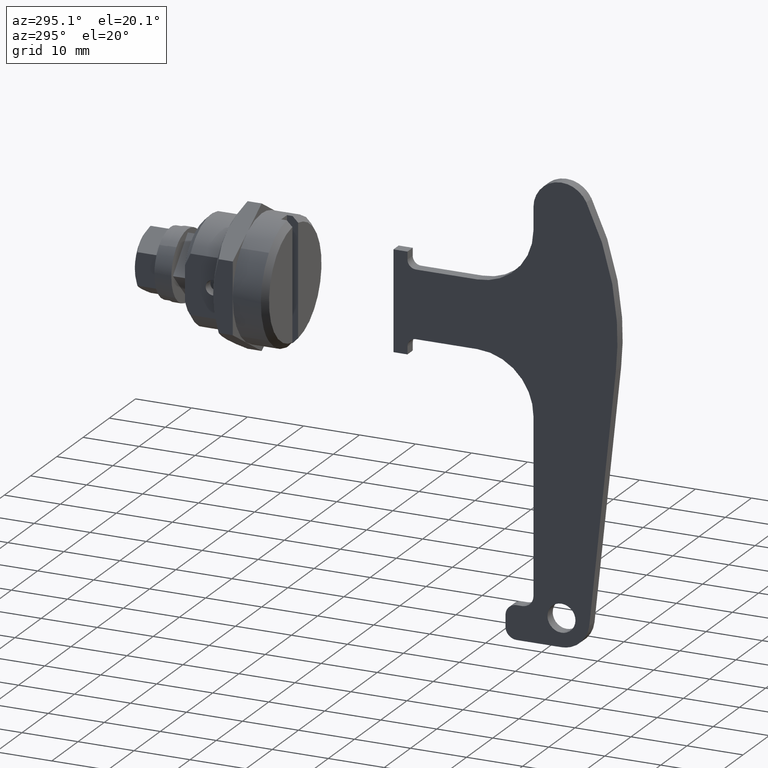
[diagram: clean part render]
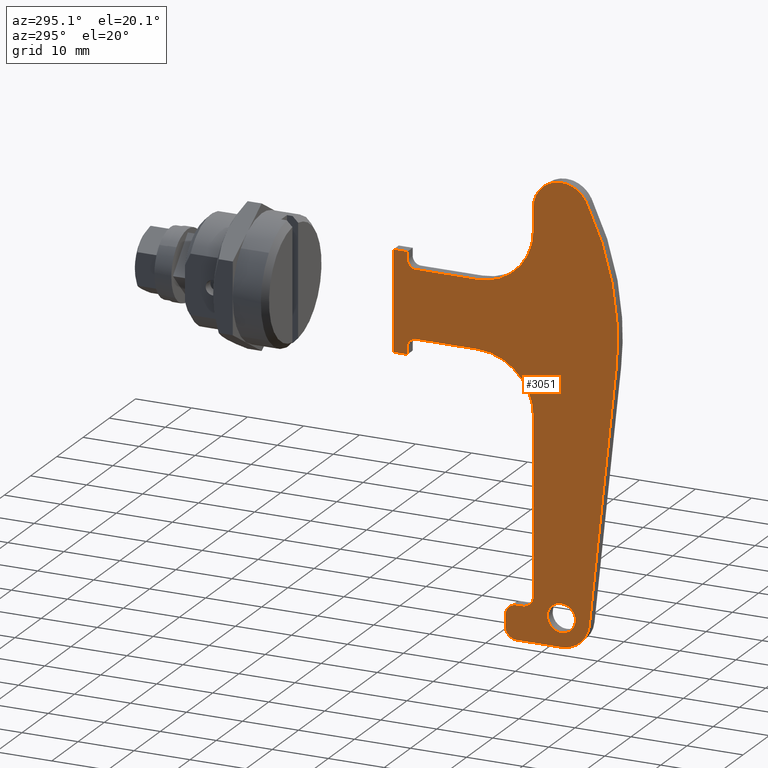
[diagram: same view with one face highlighted and labeled with its STEP entity id]
A machine part, auxiliary view. The second image highlights one B-rep face of the part: STEP entity #3051.
In plain terms, the highlighted face is a freeform B-spline surface patch.
Its self-contained STEP definition (entity closure, byte-faithful):
#2639=CARTESIAN_POINT('',(-1.0,-170.536136000000000,-47.499799999999993));
#2640=VERTEX_POINT('',#2639);
#2641=CARTESIAN_POINT('',(-1.000000000001990,-172.192686456660710,-48.127410952381972));
#2642=VERTEX_POINT('',#2641);
#2643=CARTESIAN_POINT('',(-1.0,-170.536136000000000,-47.499799999999993));
#2644=CARTESIAN_POINT('',(-1.000000000000318,-170.800226762563110,-47.499658286533460));
#2645=CARTESIAN_POINT('',(-1.000000000001042,-171.403731062217790,-47.596369053815707));
#2646=CARTESIAN_POINT('',(-1.000000000001685,-171.938640270440910,-47.902051036289393));
#2647=CARTESIAN_POINT('',(-1.000000000001990,-172.192686456660710,-48.127410952381972));
#2648=B_SPLINE_CURVE_WITH_KNOTS('',3,(#2643,#2644,#2645,#2646,#2647),.UNSPECIFIED.,.F.,.U.,(4,1,4),(0.000000093413510,0.792253203921531,1.810818178088610),.UNSPECIFIED.);
#2649=EDGE_CURVE('',#2640,#2642,#2648,.T.);
#2651=CARTESIAN_POINT('',(-1.0,-168.036136000000000,-49.999800129850001));
#2652=VERTEX_POINT('',#2651);
#2653=CARTESIAN_POINT('',(-1.0,-168.036136000000000,-49.999800129850001));
#2654=CARTESIAN_POINT('',(-1.0,-168.035992696794890,-49.733893875186787));
#2655=CARTESIAN_POINT('',(-1.000000000000001,-168.105333804147590,-49.304477470429049));
#2656=CARTESIAN_POINT('',(-0.999999999999999,-168.380156711428900,-48.684452767351281));
#2657=CARTESIAN_POINT('',(-1.000000000000001,-168.787135531025090,-48.162824488278808));
#2658=CARTESIAN_POINT('',(-0.999999999999997,-169.514010359687800,-47.650750198929913));
#2659=CARTESIAN_POINT('',(-1.000000000000004,-170.147384490604590,-47.499121212078357));
#2660=CARTESIAN_POINT('',(-1.0,-170.536136000000000,-47.499799999999993));
#2661=B_SPLINE_CURVE_WITH_KNOTS('',3,(#2653,#2654,#2655,#2656,#2657,#2658,#2659,#2660),.UNSPECIFIED.,.F.,.U.,(4,1,1,1,1,4),(0.000000543719573,0.797682162745053,1.288587646904784,2.024825535698195,2.761226608019133,3.927089434103053),.UNSPECIFIED.);
#2662=EDGE_CURVE('',#2652,#2640,#2661,.T.);
#2664=CARTESIAN_POINT('',(-1.0,-170.536136000000000,-52.499800000000000));
#2665=VERTEX_POINT('',#2664);
#2666=CARTESIAN_POINT('',(-1.0,-170.536136000000000,-52.499800000000000));
#2667=CARTESIAN_POINT('',(-1.000000000000002,-170.188356166709410,-52.500260487814721));
#2668=CARTESIAN_POINT('',(-0.999999999999997,-169.595604012052010,-52.373945107237837));
#2669=CARTESIAN_POINT('',(-0.999999999999998,-168.844410458549190,-51.898314483583050));
#2670=CARTESIAN_POINT('',(-1.000000000000009,-168.396737789170000,-51.352813859373377));
#2671=CARTESIAN_POINT('',(-0.999999999999991,-168.105347834750400,-50.695110744591879));
#2672=CARTESIAN_POINT('',(-1.000000000000005,-168.035994032083690,-50.265705896427242));
#2673=CARTESIAN_POINT('',(-1.0,-168.036136000000000,-49.999800129850001));
#2674=B_SPLINE_CURVE_WITH_KNOTS('',3,(#2666,#2667,#2668,#2669,#2670,#2671,#2672,#2673),.UNSPECIFIED.,.F.,.U.,(4,1,1,1,1,4),(0.000000543888734,1.043138602829692,1.779488417533532,2.638502232633047,3.129407698402412,3.927089287728215),.UNSPECIFIED.);
#2675=EDGE_CURVE('',#2665,#2652,#2674,.T.);
#2677=CARTESIAN_POINT('',(-0.999999999997504,-172.408524998983610,-51.656350414379901));
#2678=VERTEX_POINT('',#2677);
#2679=CARTESIAN_POINT('',(-0.999999999997504,-172.408524998983610,-51.656350414379901));
#2680=CARTESIAN_POINT('',(-0.999999999997757,-172.218763774112010,-51.871134253127657));
#2681=CARTESIAN_POINT('',(-0.999999999998249,-171.851681568308210,-52.164244545686230));
#2682=CARTESIAN_POINT('',(-0.999999999999115,-171.197403661433300,-52.438360860228940));
#2683=CARTESIAN_POINT('',(-0.999999999999681,-170.778633855696400,-52.499901522019933));
#2684=CARTESIAN_POINT('',(-1.0,-170.536136000000000,-52.499800000000000));
#2685=B_SPLINE_CURVE_WITH_KNOTS('',3,(#2679,#2680,#2681,#2682,#2683,#2684),.UNSPECIFIED.,.F.,.U.,(4,1,1,4),(0.000000159299617,0.859743416419884,1.388786227848954,2.116272966683433),.UNSPECIFIED.);
#2686=EDGE_CURVE('',#2678,#2665,#2685,.T.);
#2764=CARTESIAN_POINT('',(-1.0,-173.036136000000000,-49.999799870149992));
#2765=VERTEX_POINT('',#2764);
#2766=CARTESIAN_POINT('',(-1.000000000001990,-172.192686456660710,-48.127410952381972));
#2767=CARTESIAN_POINT('',(-1.000000000001791,-172.407487439261590,-48.317158619353989));
#2768=CARTESIAN_POINT('',(-1.000000000001395,-172.700567220170910,-48.684263756032983));
#2769=CARTESIAN_POINT('',(-1.000000000000707,-172.974694550910410,-49.338534477410960));
#2770=CARTESIAN_POINT('',(-1.000000000000253,-173.036240669849490,-49.757299890618562));
#2771=CARTESIAN_POINT('',(-1.0,-173.036136000000000,-49.999799870149992));
#2772=B_SPLINE_CURVE_WITH_KNOTS('',3,(#2766,#2767,#2768,#2769,#2770,#2771),.UNSPECIFIED.,.F.,.U.,(4,1,1,4),(0.000000159294619,0.859743374974491,1.388786160905466,2.116272864656853),.UNSPECIFIED.);
#2773=EDGE_CURVE('',#2642,#2765,#2772,.T.);
#2796=CARTESIAN_POINT('',(-1.0,-173.036136000000000,-49.999799870149992));
#2797=CARTESIAN_POINT('',(-0.999999999999490,-173.036528522227710,-50.339379605216422));
#2798=CARTESIAN_POINT('',(-0.999999999998579,-172.911162995078310,-50.942605600580642));
#2799=CARTESIAN_POINT('',(-0.999999999997803,-172.583592864065910,-51.458635202120703));
#2800=CARTESIAN_POINT('',(-0.999999999997504,-172.408524998983610,-51.656350414379901));
#2801=B_SPLINE_CURVE_WITH_KNOTS('',3,(#2796,#2797,#2798,#2799,#2800),.UNSPECIFIED.,.F.,.U.,(4,1,4),(0.000000093413915,1.018565127809672,1.810818285168500),.UNSPECIFIED.);
#2802=EDGE_CURVE('',#2765,#2678,#2801,.T.);
#2807=CARTESIAN_POINT('',(-1.0,-182.531969976906310,28.994175920847951));
#2808=CARTESIAN_POINT('',(-1.0,-138.538235049813610,28.994175920847951));
#2809=CARTESIAN_POINT('',(-1.0,-182.531969976906310,-58.995705705116187));
#2810=CARTESIAN_POINT('',(-1.0,-138.538235049813610,-58.995705705116187));
#2811=B_SPLINE_SURFACE_WITH_KNOTS('',1,1,((#2807,#2809),(#2808,#2810)),.UNSPECIFIED.,.F.,.F.,.U.,(2,2),(2,2),(0.0,43.993734927092653),(0.0,87.989881625964145),.UNSPECIFIED.);
#2812=CARTESIAN_POINT('',(-1.0,-143.036136000000000,7.500000000000000));
#2813=VERTEX_POINT('',#2812);
#2814=CARTESIAN_POINT('',(-1.0,-143.036136000000000,8.850000000000000));
#2815=VERTEX_POINT('',#2814);
#2816=CARTESIAN_POINT('',(-1.0,-143.036136000000000,7.500000000000000));
#2817=CARTESIAN_POINT('',(-1.0,-143.036136000000000,8.850000000000000));
#2818=QUASI_UNIFORM_CURVE('',1,(#2816,#2817),.UNSPECIFIED.,.F.,.U.);
#2819=EDGE_CURVE('',#2813,#2815,#2818,.T.);
#2820=ORIENTED_EDGE('',*,*,#2819,.T.);
#2821=CARTESIAN_POINT('',(-1.0,-140.536136000000000,8.850000000000000));
#2822=VERTEX_POINT('',#2821);
#2823=CARTESIAN_POINT('',(-1.0,-143.036136000000000,8.850000000000000));
#2824=CARTESIAN_POINT('',(-1.0,-140.536136000000000,8.850000000000000));
#2825=QUASI_UNIFORM_CURVE('',1,(#2823,#2824),.UNSPECIFIED.,.F.,.U.);
#2826=EDGE_CURVE('',#2815,#2822,#2825,.T.);
#2827=ORIENTED_EDGE('',*,*,#2826,.T.);
#2828=CARTESIAN_POINT('',(-1.0,-140.536136000000000,-8.850000000000000));
#2829=VERTEX_POINT('',#2828);
#2830=CARTESIAN_POINT('',(-1.0,-140.536136000000000,8.850000000000000));
#2831=CARTESIAN_POINT('',(-1.0,-140.536136000000000,-8.850000000000000));
#2832=QUASI_UNIFORM_CURVE('',1,(#2830,#2831),.UNSPECIFIED.,.F.,.U.);
#2833=EDGE_CURVE('',#2822,#2829,#2832,.T.);
#2834=ORIENTED_EDGE('',*,*,#2833,.T.);
#2835=CARTESIAN_POINT('',(-1.0,-143.036136000000000,-8.850000000000000));
#2836=VERTEX_POINT('',#2835);
#2837=CARTESIAN_POINT('',(-1.0,-140.536136000000000,-8.850000000000000));
#2838=CARTESIAN_POINT('',(-1.0,-143.036136000000000,-8.850000000000000));
#2839=QUASI_UNIFORM_CURVE('',1,(#2837,#2838),.UNSPECIFIED.,.F.,.U.);
#2840=EDGE_CURVE('',#2829,#2836,#2839,.T.);
#2841=ORIENTED_EDGE('',*,*,#2840,.T.);
#2842=CARTESIAN_POINT('',(-1.0,-143.036136000000000,-7.500000000000000));
#2843=VERTEX_POINT('',#2842);
#2844=CARTESIAN_POINT('',(-1.0,-143.036136000000000,-8.850000000000000));
#2845=CARTESIAN_POINT('',(-1.0,-143.036136000000000,-7.500000000000000));
#2846=QUASI_UNIFORM_CURVE('',1,(#2844,#2845),.UNSPECIFIED.,.F.,.U.);
#2847=EDGE_CURVE('',#2836,#2843,#2846,.T.);
#2848=ORIENTED_EDGE('',*,*,#2847,.T.);
#2849=CARTESIAN_POINT('',(-1.0,-144.536136000000000,-6.0));
#2850=VERTEX_POINT('',#2849);
#2851=CARTESIAN_POINT('',(-1.0,-143.036136000000000,-7.500000000000000));
#2852=CARTESIAN_POINT('',(-0.999999999999999,-143.035793775269410,-7.279035425719099));
#2853=CARTESIAN_POINT('',(-1.000000000000002,-143.130030361828400,-6.862158556068359));
#2854=CARTESIAN_POINT('',(-0.999999999999997,-143.502487818818390,-6.359506614172871));
#2855=CARTESIAN_POINT('',(-1.000000000000004,-143.996203109713600,-6.063885360538771));
#2856=CARTESIAN_POINT('',(-0.999999999999998,-144.364324854387090,-5.999902443624710));
#2857=CARTESIAN_POINT('',(-1.0,-144.536136000000000,-6.0));
#2858=B_SPLINE_CURVE_WITH_KNOTS('',3,(#2851,#2852,#2853,#2854,#2855,#2856,#2857),.UNSPECIFIED.,.F.,.U.,(4,1,1,1,4),(0.000000348528810,0.662746990289565,1.251847667184678,1.840962228493762,2.356430824938675),.UNSPECIFIED.);
#2859=EDGE_CURVE('',#2843,#2850,#2858,.T.);
#2860=ORIENTED_EDGE('',*,*,#2859,.T.);
#2861=CARTESIAN_POINT('',(-1.0,-155.536136000000000,-6.0));
#2862=VERTEX_POINT('',#2861);
#2863=CARTESIAN_POINT('',(-1.0,-144.536136000000000,-6.0));
#2864=CARTESIAN_POINT('',(-1.0,-155.536136000000000,-6.0));
#2865=QUASI_UNIFORM_CURVE('',1,(#2863,#2864),.UNSPECIFIED.,.F.,.U.);
#2866=EDGE_CURVE('',#2850,#2862,#2865,.T.);
#2867=ORIENTED_EDGE('',*,*,#2866,.T.);
#2868=CARTESIAN_POINT('',(-1.0,-165.536136000000000,-16.0));
#2869=VERTEX_POINT('',#2868);
#2870=CARTESIAN_POINT('',(-1.0,-155.536136000000000,-6.0));
#2871=CARTESIAN_POINT('',(-0.999999999999999,-156.313352613838500,-5.999877524168937));
#2872=CARTESIAN_POINT('',(-0.999999999999999,-157.949580587987610,-6.191577421280197));
#2873=CARTESIAN_POINT('',(-1.000000000000007,-160.225415989497410,-7.053419415564927));
#2874=CARTESIAN_POINT('',(-0.999999999999993,-162.288323329022690,-8.487367863672265));
#2875=CARTESIAN_POINT('',(-0.999999999999996,-163.889115376740900,-10.320354401015379));
#2876=CARTESIAN_POINT('',(-1.000000000000013,-164.844872655742990,-12.190716686984400));
#2877=CARTESIAN_POINT('',(-0.999999999999976,-165.404463952215390,-14.077488982024590));
#2878=CARTESIAN_POINT('',(-1.000000000000053,-165.536286622605100,-15.263686519067839));
#2879=CARTESIAN_POINT('',(-1.0,-165.536136000000000,-16.0));
#2880=B_SPLINE_CURVE_WITH_KNOTS('',3,(#2870,#2871,#2872,#2873,#2874,#2875,#2876,#2877,#2878,#2879),.UNSPECIFIED.,.F.,.U.,(4,1,1,1,1,1,1,4),(0.000000270659248,2.331654123681362,4.908776769868471,7.240483282914747,9.817521841804044,12.149208311741949,13.499153531187099,15.708061828769370),.UNSPECIFIED.);
#2881=EDGE_CURVE('',#2862,#2869,#2880,.T.);
#2882=ORIENTED_EDGE('',*,*,#2881,.T.);
#2883=CARTESIAN_POINT('',(-1.0,-165.536136000000000,-46.999800000000000));
#2884=VERTEX_POINT('',#2883);
#2885=CARTESIAN_POINT('',(-1.0,-165.536136000000000,-16.0));
#2886=CARTESIAN_POINT('',(-1.0,-165.536136000000000,-46.999800000000000));
#2887=QUASI_UNIFORM_CURVE('',1,(#2885,#2886),.UNSPECIFIED.,.F.,.U.);
#2888=EDGE_CURVE('',#2869,#2884,#2887,.T.);
#2889=ORIENTED_EDGE('',*,*,#2888,.T.);
#2890=CARTESIAN_POINT('',(-1.0,-163.536136000000000,-48.999800000000000));
#2891=VERTEX_POINT('',#2890);
#2892=CARTESIAN_POINT('',(-1.0,-165.536136000000000,-46.999800000000000));
#2893=CARTESIAN_POINT('',(-1.000000000000000,-165.536254442622290,-47.212521208911589));
#2894=CARTESIAN_POINT('',(-0.999999999999999,-165.470263930511090,-47.621513364319448));
#2895=CARTESIAN_POINT('',(-1.000000000000003,-165.202568248399810,-48.153386587107903));
#2896=CARTESIAN_POINT('',(-1.0,-164.809234915275110,-48.576839164540097));
#2897=CARTESIAN_POINT('',(-1.000000000000000,-164.255912327299710,-48.908480606216642));
#2898=CARTESIAN_POINT('',(-1.0,-163.797982037756410,-49.000093947631797));
#2899=CARTESIAN_POINT('',(-1.0,-163.536136000000000,-48.999800000000000));
#2900=B_SPLINE_CURVE_WITH_KNOTS('',3,(#2892,#2893,#2894,#2895,#2896,#2897,#2898,#2899),.UNSPECIFIED.,.F.,.U.,(4,1,1,1,1,4),(0.000000559996974,0.638137288440006,1.227220290643141,1.767134176386044,2.356253756581050,3.141671488777228),.UNSPECIFIED.);
#2901=EDGE_CURVE('',#2884,#2891,#2900,.T.);
#2902=ORIENTED_EDGE('',*,*,#2901,.T.);
#2903=CARTESIAN_POINT('',(-1.0,-162.536136000000000,-48.999800000000000));
#2904=VERTEX_POINT('',#2903);
#2905=CARTESIAN_POINT('',(-1.0,-163.536136000000000,-48.999800000000000));
#2906=CARTESIAN_POINT('',(-1.0,-162.536136000000000,-48.999800000000000));
#2907=QUASI_UNIFORM_CURVE('',1,(#2905,#2906),.UNSPECIFIED.,.F.,.U.);
#2908=EDGE_CURVE('',#2891,#2904,#2907,.T.);
#2909=ORIENTED_EDGE('',*,*,#2908,.T.);
#2910=CARTESIAN_POINT('',(-1.0,-160.536136000000000,-50.999800000000000));
#2911=VERTEX_POINT('',#2910);
#2912=CARTESIAN_POINT('',(-1.0,-160.536136000000000,-50.999800000000000));
#2913=CARTESIAN_POINT('',(-1.0,-160.535678310414710,-50.705173330319582));
#2914=CARTESIAN_POINT('',(-1.0,-160.628168084521690,-50.296538752554198));
#2915=CARTESIAN_POINT('',(-1.000000000000000,-160.967199382153210,-49.714640436023053));
#2916=CARTESIAN_POINT('',(-1.0,-161.365780098564810,-49.335204750194357));
#2917=CARTESIAN_POINT('',(-1.000000000000000,-161.947165031298200,-49.060422469528611));
#2918=CARTESIAN_POINT('',(-1.0,-162.323420360968810,-48.999701494054918));
#2919=CARTESIAN_POINT('',(-1.0,-162.536136000000000,-48.999800000000000));
#2920=B_SPLINE_CURVE_WITH_KNOTS('',3,(#2912,#2913,#2914,#2915,#2916,#2917,#2918,#2919),.UNSPECIFIED.,.F.,.U.,(4,1,1,1,1,4),(0.000000559991365,0.883601524163745,1.227220290639869,2.012618570527279,2.503534760331541,3.141671488777254),.UNSPECIFIED.);
#2921=EDGE_CURVE('',#2911,#2904,#2920,.T.);
#2922=ORIENTED_EDGE('',*,*,#2921,.F.);
#2923=CARTESIAN_POINT('',(-1.0,-160.536136000000000,-52.999800000000000));
#2924=VERTEX_POINT('',#2923);
#2925=CARTESIAN_POINT('',(-1.0,-160.536136000000000,-50.999800000000000));
#2926=CARTESIAN_POINT('',(-1.0,-160.536136000000000,-52.999800000000000));
#2927=QUASI_UNIFORM_CURVE('',1,(#2925,#2926),.UNSPECIFIED.,.F.,.U.);
#2928=EDGE_CURVE('',#2911,#2924,#2927,.T.);
#2929=ORIENTED_EDGE('',*,*,#2928,.T.);
#2930=CARTESIAN_POINT('',(-1.0,-162.536136000000000,-54.999800000000000));
#2931=VERTEX_POINT('',#2930);
#2932=CARTESIAN_POINT('',(-1.0,-162.536136000000000,-54.999800000000000));
#2933=CARTESIAN_POINT('',(-1.000000000000001,-162.323415775439910,-54.999917801515963));
#2934=CARTESIAN_POINT('',(-0.999999999999999,-161.914416937771700,-54.933930859061093));
#2935=CARTESIAN_POINT('',(-1.000000000000001,-161.426893922982200,-54.688536838248659));
#2936=CARTESIAN_POINT('',(-0.999999999999999,-161.053482805580190,-54.366306310719530));
#2937=CARTESIAN_POINT('',(-1.000000000000001,-160.670034435391100,-53.850025567971407));
#2938=CARTESIAN_POINT('',(-0.999999999999999,-160.535402394528010,-53.343597956939888));
#2939=CARTESIAN_POINT('',(-1.0,-160.536136000000000,-52.999800000000000));
#2940=B_SPLINE_CURVE_WITH_KNOTS('',3,(#2932,#2933,#2934,#2935,#2936,#2937,#2938,#2939),.UNSPECIFIED.,.F.,.U.,(4,1,1,1,1,4),(0.000000559976899,0.638137288425729,1.227220290634346,1.619840993311987,2.110791174281912,3.141671488777115),.UNSPECIFIED.);
#2941=EDGE_CURVE('',#2931,#2924,#2940,.T.);
#2942=ORIENTED_EDGE('',*,*,#2941,.F.);
#2943=CARTESIAN_POINT('',(-1.0,-170.536098852220500,-54.999800000000000));
#2944=VERTEX_POINT('',#2943);
#2945=CARTESIAN_POINT('',(-1.0,-162.536136000000000,-54.999800000000000));
#2946=CARTESIAN_POINT('',(-1.0,-170.536098852220500,-54.999800000000000));
#2947=QUASI_UNIFORM_CURVE('',1,(#2945,#2946),.UNSPECIFIED.,.F.,.U.);
#2948=EDGE_CURVE('',#2931,#2944,#2947,.T.);
#2949=ORIENTED_EDGE('',*,*,#2948,.T.);
#2950=CARTESIAN_POINT('',(-1.0,-175.508040051504510,-50.528761918160299));
#2951=VERTEX_POINT('',#2950);
#2952=CARTESIAN_POINT('',(-1.0,-175.508040051504510,-50.528761918160299));
#2953=CARTESIAN_POINT('',(-1.000000000000002,-175.467767249162310,-50.908084614285997));
#2954=CARTESIAN_POINT('',(-0.999999999999997,-175.291357056239800,-51.694889112015240));
#2955=CARTESIAN_POINT('',(-1.000000000000002,-174.727369014573900,-52.831456638390932));
#2956=CARTESIAN_POINT('',(-1.000000000000000,-173.936665273361510,-53.725757987185681));
#2957=CARTESIAN_POINT('',(-0.999999999999999,-173.062365303995310,-54.347054025173563));
#2958=CARTESIAN_POINT('',(-1.0,-171.985415643489010,-54.847463412505213));
#2959=CARTESIAN_POINT('',(-1.000000000000003,-171.108359805882910,-55.000235142685163));
#2960=CARTESIAN_POINT('',(-1.0,-170.536098852220500,-54.999800000000000));
#2961=B_SPLINE_CURVE_WITH_KNOTS('',3,(#2952,#2953,#2954,#2955,#2956,#2957,#2958,#2959,#2960),.UNSPECIFIED.,.F.,.U.,(4,1,1,1,1,1,4),(0.000000250459265,1.144376551728799,2.403274791967948,3.776496911442255,4.692022891164207,5.607586888820030,7.324187848232405),.UNSPECIFIED.);
#2962=EDGE_CURVE('',#2951,#2944,#2961,.T.);
#2963=ORIENTED_EDGE('',*,*,#2962,.F.);
#2964=CARTESIAN_POINT('',(-1.0,-180.255535899108510,-5.905000948322530));
#2965=VERTEX_POINT('',#2964);
#2966=CARTESIAN_POINT('',(-1.0,-175.508040051504510,-50.528761918160299));
#2967=CARTESIAN_POINT('',(-1.0,-180.255535899108510,-5.905000948322530));
#2968=QUASI_UNIFORM_CURVE('',1,(#2966,#2967),.UNSPECIFIED.,.F.,.U.);
#2969=EDGE_CURVE('',#2951,#2965,#2968,.T.);
#2970=ORIENTED_EDGE('',*,*,#2969,.T.);
#2971=CARTESIAN_POINT('',(-1.0,-174.980589359556490,22.290851301147448));
#2972=VERTEX_POINT('',#2971);
#2973=CARTESIAN_POINT('',(-1.0,-174.980589359556490,22.290851301147448));
#2974=CARTESIAN_POINT('',(-1.0,-176.369247159211000,19.597096437408570));
#2975=CARTESIAN_POINT('',(-1.000000000000003,-178.140090907402510,15.225299982227590));
#2976=CARTESIAN_POINT('',(-0.999999999999996,-179.642960447466410,9.189073221727275));
#2977=CARTESIAN_POINT('',(-1.000000000000001,-180.631174540060700,2.588412057820146));
#2978=CARTESIAN_POINT('',(-0.999999999999998,-180.624822931351700,-2.439372199072217));
#2979=CARTESIAN_POINT('',(-1.0,-180.255535899108510,-5.905000948322530));
#2980=B_SPLINE_CURVE_WITH_KNOTS('',3,(#2973,#2974,#2975,#2976,#2977,#2978,#2979),.UNSPECIFIED.,.F.,.U.,(4,1,1,1,4),(0.000000015266519,9.091807153595042,14.092292656003700,18.638175211276160,29.093756540547840),.UNSPECIFIED.);
#2981=EDGE_CURVE('',#2972,#2965,#2980,.T.);
#2982=ORIENTED_EDGE('',*,*,#2981,.F.);
#2983=CARTESIAN_POINT('',(-1.0,-165.536136000000000,20.0));
#2984=VERTEX_POINT('',#2983);
#2985=CARTESIAN_POINT('',(-1.0,-165.536136000000000,20.0));
#2986=CARTESIAN_POINT('',(-1.000000000000000,-165.535651330309610,20.590148397457270));
#2987=CARTESIAN_POINT('',(-1.0,-165.703977443484490,21.526960888046489));
#2988=CARTESIAN_POINT('',(-1.000000000000001,-166.275205194960510,22.685051597023840));
#2989=CARTESIAN_POINT('',(-1.000000000000002,-167.030100612542410,23.645451138516009));
#2990=CARTESIAN_POINT('',(-0.999999999999996,-168.041604944862400,24.404866339557891));
#2991=CARTESIAN_POINT('',(-1.000000000000006,-169.310428777709210,24.901753025372528));
#2992=CARTESIAN_POINT('',(-0.999999999999999,-170.422759360053900,25.039765414371960));
#2993=CARTESIAN_POINT('',(-1.0,-171.601688043104500,24.927084001691231));
#2994=CARTESIAN_POINT('',(-1.0,-172.567895689886910,24.613446190662991));
#2995=CARTESIAN_POINT('',(-1.0,-173.498115673314800,24.065013004533551));
#2996=CARTESIAN_POINT('',(-1.000000000000000,-174.311452175277990,23.351637564042569));
#2997=CARTESIAN_POINT('',(-1.0,-174.774012401304300,22.692009829662119));
#2998=CARTESIAN_POINT('',(-1.0,-174.980589359556490,22.290851301147448));
#2999=B_SPLINE_CURVE_WITH_KNOTS('',3,(#2985,#2986,#2987,#2988,#2989,#2990,#2991,#2992,#2993,#2994,#2995,#2996,#2997,#2998),.UNSPECIFIED.,.F.,.U.,(4,1,1,1,1,1,1,1,1,1,1,4),(0.000000654076901,1.770239848158150,2.811577260832493,3.852943371635385,5.415021830009432,6.560474267477026,7.914034090324725,8.747138884296152,10.100936611302920,10.934040756647960,11.975407582284880,13.329057838478249),.UNSPECIFIED.);
#3000=EDGE_CURVE('',#2984,#2972,#2999,.T.);
#3001=ORIENTED_EDGE('',*,*,#3000,.F.);
#3002=CARTESIAN_POINT('',(-1.0,-165.536136000000000,16.0));
#3003=VERTEX_POINT('',#3002);
#3004=CARTESIAN_POINT('',(-1.0,-165.536136000000000,20.0));
#3005=CARTESIAN_POINT('',(-1.0,-165.536136000000000,16.0));
#3006=QUASI_UNIFORM_CURVE('',1,(#3004,#3005),.UNSPECIFIED.,.F.,.U.);
#3007=EDGE_CURVE('',#2984,#3003,#3006,.T.);
#3008=ORIENTED_EDGE('',*,*,#3007,.T.);
#3009=CARTESIAN_POINT('',(-1.0,-155.536136000000000,6.0));
#3010=VERTEX_POINT('',#3009);
#3011=CARTESIAN_POINT('',(-1.0,-165.536136000000000,16.0));
#3012=CARTESIAN_POINT('',(-0.999999999999998,-165.536270206773710,15.222783024775010));
#3013=CARTESIAN_POINT('',(-1.000000000000002,-165.344535277846090,13.586556363174550));
#3014=CARTESIAN_POINT('',(-1.0,-164.482754602917000,11.310709298614350));
#3015=CARTESIAN_POINT('',(-1.000000000000001,-163.119200065381790,9.349326876895788));
#3016=CARTESIAN_POINT('',(-1.000000000000000,-161.685892623961910,8.050416106532385));
#3017=CARTESIAN_POINT('',(-1.000000000000006,-160.196986578333110,7.107668725069982));
#3018=CARTESIAN_POINT('',(-0.999999999999994,-158.276544224122200,6.270142162420049));
#3019=CARTESIAN_POINT('',(-1.0,-156.599769320177500,5.999434560674318));
#3020=CARTESIAN_POINT('',(-1.0,-155.536136000000000,6.0));
#3021=B_SPLINE_CURVE_WITH_KNOTS('',3,(#3011,#3012,#3013,#3014,#3015,#3016,#3017,#3018,#3019,#3020),.UNSPECIFIED.,.F.,.U.,(4,1,1,1,1,1,1,4),(0.000000270709116,2.331654123721627,4.908776769898752,7.240483282938246,9.449341766031962,10.676546318009720,12.517376724644430,15.708061828768770),.UNSPECIFIED.);
#3022=EDGE_CURVE('',#3003,#3010,#3021,.T.);
#3023=ORIENTED_EDGE('',*,*,#3022,.T.);
#3024=CARTESIAN_POINT('',(-1.0,-144.536136000000000,6.0));
#3025=VERTEX_POINT('',#3024);
#3026=CARTESIAN_POINT('',(-1.0,-155.536136000000000,6.0));
#3027=CARTESIAN_POINT('',(-1.0,-144.536136000000000,6.0));
#3028=QUASI_UNIFORM_CURVE('',1,(#3026,#3027),.UNSPECIFIED.,.F.,.U.);
#3029=EDGE_CURVE('',#3010,#3025,#3028,.T.);
#3030=ORIENTED_EDGE('',*,*,#3029,.T.);
#3031=CARTESIAN_POINT('',(-1.0,-144.536136000000000,6.0));
#3032=CARTESIAN_POINT('',(-1.000000000000000,-144.364328450384110,5.999902386504352));
#3033=CARTESIAN_POINT('',(-1.0,-143.996199413855290,6.063884458602612));
#3034=CARTESIAN_POINT('',(-1.000000000000002,-143.502501754630090,6.359509338114351));
#3035=CARTESIAN_POINT('',(-0.999999999999996,-143.129994263701600,6.862151444936044));
#3036=CARTESIAN_POINT('',(-1.000000000000003,-143.035823639093000,7.279038803580241));
#3037=CARTESIAN_POINT('',(-1.0,-143.036136000000000,7.500000000000000));
#3038=B_SPLINE_CURVE_WITH_KNOTS('',3,(#3031,#3032,#3033,#3034,#3035,#3036,#3037),.UNSPECIFIED.,.F.,.U.,(4,1,1,1,4),(0.000000348524005,0.515468944969951,1.104583506280744,1.693684183177093,2.356430824938667),.UNSPECIFIED.);
#3039=EDGE_CURVE('',#3025,#2813,#3038,.T.);
#3040=ORIENTED_EDGE('',*,*,#3039,.T.);
#3041=EDGE_LOOP('',(#2820,#2827,#2834,#2841,#2848,#2860,#2867,#2882,#2889,#2902,#2909,#2922,#2929,#2942,#2949,#2963,#2970,#2982,#3001,#3008,#3023,#3030,#3040));
#3042=FACE_OUTER_BOUND('',#3041,.T.);
#3043=ORIENTED_EDGE('',*,*,#2675,.T.);
#3044=ORIENTED_EDGE('',*,*,#2662,.T.);
#3045=ORIENTED_EDGE('',*,*,#2649,.T.);
#3046=ORIENTED_EDGE('',*,*,#2773,.T.);
#3047=ORIENTED_EDGE('',*,*,#2802,.T.);
#3048=ORIENTED_EDGE('',*,*,#2686,.T.);
#3049=EDGE_LOOP('',(#3043,#3044,#3045,#3046,#3047,#3048));
#3050=FACE_BOUND('',#3049,.T.);
#3051=ADVANCED_FACE('',(#3042,#3050),#2811,.T.);